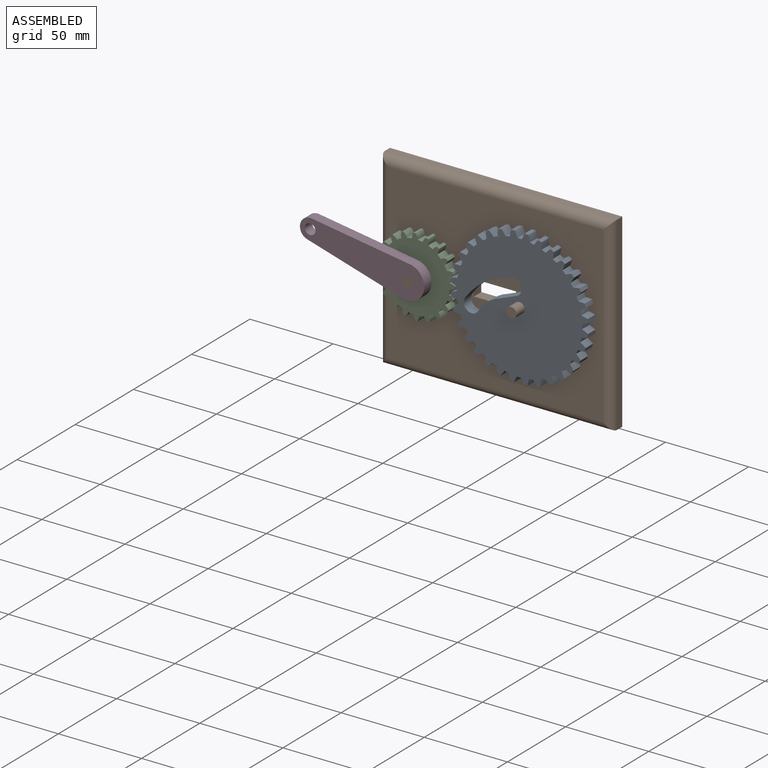
[diagram: assembled view]
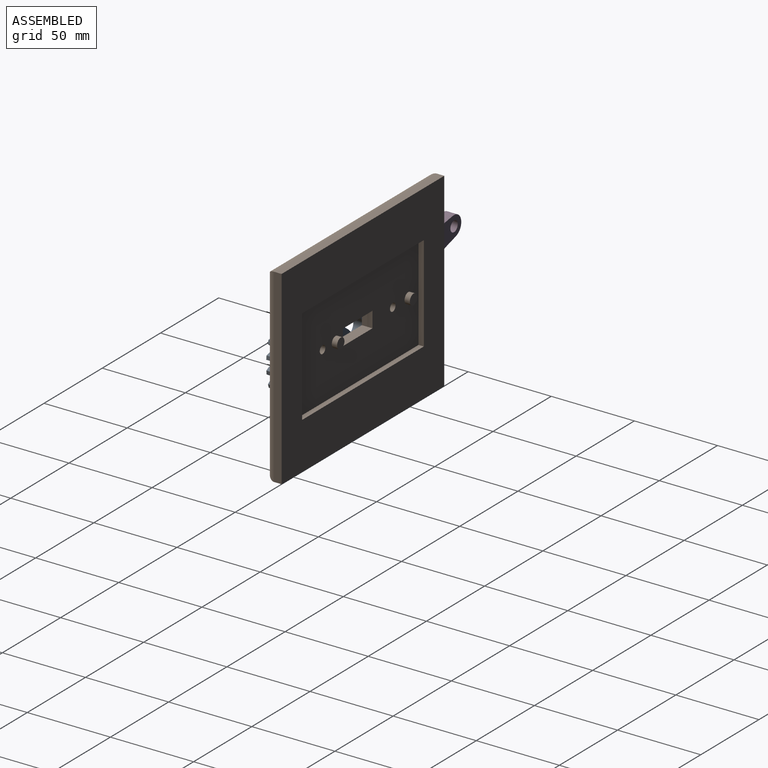
[diagram: assembled view, second angle]
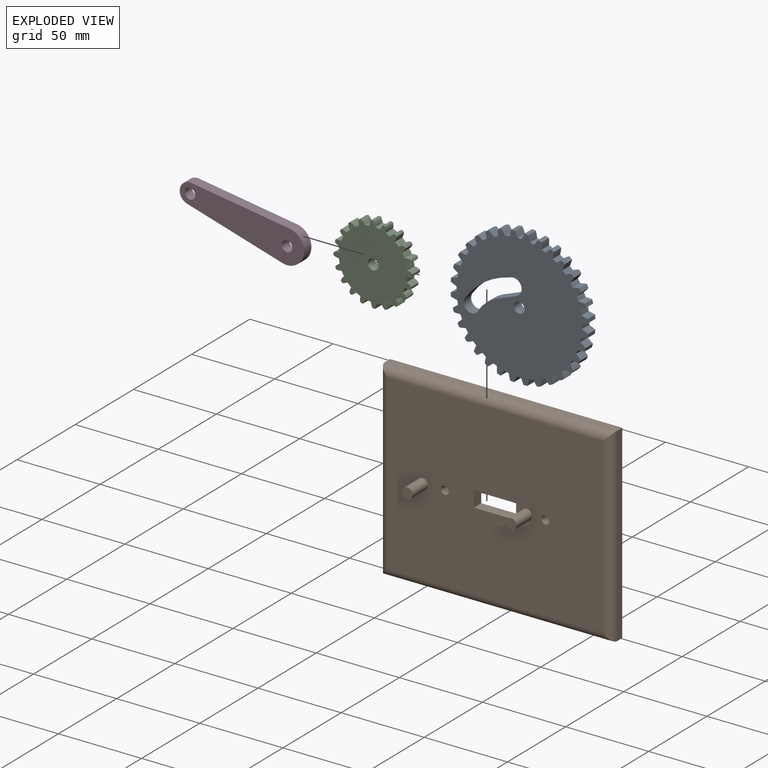
[diagram: exploded view]
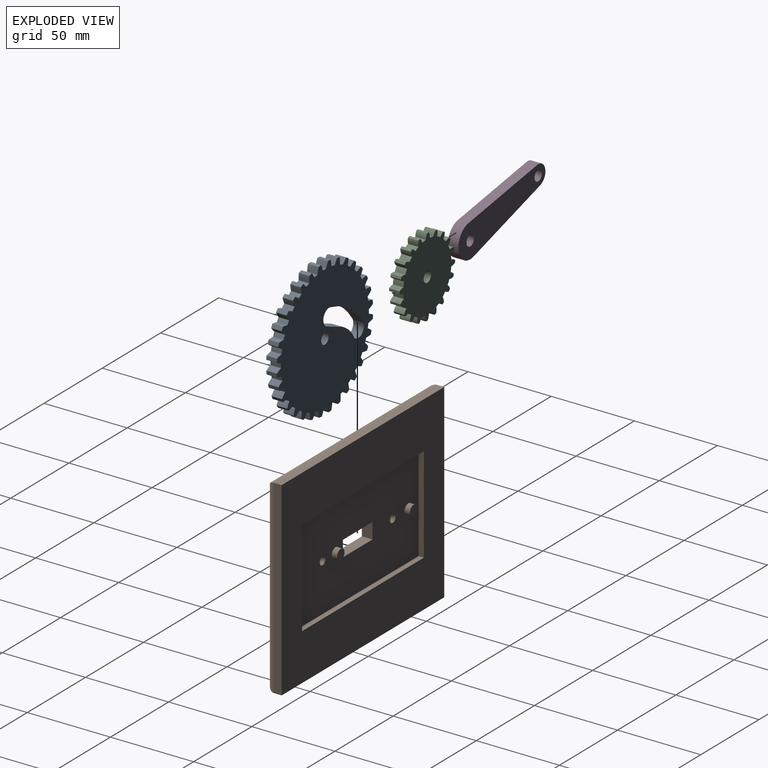
[diagram: exploded view, second angle]
ASSEMBLY  parts=4 mates=3
PART A: 200 faces, bbox 82.8x6.4x82.8 mm
  f0: plane 82.8x82.8mm, normal (0,-1,0), area 4491.3mm2, adj f2,f3,f4,f5,f6,f7,f8,f9
  f1: plane 82.8x82.8mm, normal (0,1,0), area 4491.3mm2, adj f2,f3,f4,f5,f6,f7,f8,f9
  f2: cylinder r=37.72mm len=6.35mm, axis (0,1,0), area 16.6mm2, adj f0,f1,f124,f129
  f3: cylinder r=37.72mm len=6.35mm, axis (0,1,0), area 16.6mm2, adj f0,f1,f128,f134
  f4: cylinder r=37.72mm len=6.35mm, axis (0,1,0), area 16.6mm2, adj f0,f1,f133,f139
  f5: cylinder r=37.72mm len=6.35mm, axis (0,1,0), area 16.6mm2, adj f0,f1,f138,f144
  f6: cylinder r=37.72mm len=6.35mm, axis (0,1,0), area 16.6mm2, adj f0,f1,f143,f149
  f7: cylinder r=37.72mm len=6.35mm, axis (0,1,0), area 16.6mm2, adj f0,f1,f148,f154
  f8: cylinder r=37.72mm len=6.35mm, axis (0,1,0), area 16.6mm2, adj f0,f1,f153,f159
  f9: cylinder r=37.72mm len=6.35mm, axis (0,1,0), area 16.6mm2, adj f0,f1,f158,f164
  f10: cylinder r=37.72mm len=6.35mm, axis (0,1,0), area 16.6mm2, adj f0,f1,f163,f169
  f11: cylinder r=37.72mm len=6.35mm, axis (0,1,0), area 16.6mm2, adj f0,f1,f168,f174
  f12: cylinder r=37.72mm len=6.35mm, axis (0,1,0), area 16.6mm2, adj f0,f1,f173,f179
  f13: cylinder r=37.72mm len=6.35mm, axis (0,1,0), area 16.6mm2, adj f0,f1,f178,f184
  f14: cylinder r=37.72mm len=6.35mm, axis (0,1,0), area 16.6mm2, adj f0,f1,f183,f189
  f15: cylinder r=37.72mm len=6.35mm, axis (0,1,0), area 16.6mm2, adj f0,f1,f188,f192
  f16: cylinder r=37.72mm len=6.35mm, axis (0,1,0), area 16.6mm2, adj f0,f1,f44,f193
  f17: cylinder r=37.72mm len=6.35mm, axis (0,1,0), area 16.6mm2, adj f0,f1,f43,f49
  f18: cylinder r=37.72mm len=6.35mm, axis (0,1,0), area 16.6mm2, adj f0,f1,f48,f54
  f19: cylinder r=37.72mm len=6.35mm, axis (0,1,0), area 16.6mm2, adj f0,f1,f53,f59
  f20: cylinder r=37.72mm len=6.35mm, axis (0,1,0), area 16.6mm2, adj f0,f1,f58,f64
  f21: cylinder r=37.72mm len=6.35mm, axis (0,1,0), area 16.6mm2, adj f0,f1,f63,f69
  f22: cylinder r=37.72mm len=6.35mm, axis (0,1,0), area 16.6mm2, adj f0,f1,f68,f74
  f23: cylinder r=37.72mm len=6.35mm, axis (0,1,0), area 16.6mm2, adj f0,f1,f73,f79
  f24: cylinder r=37.72mm len=6.35mm, axis (0,1,0), area 16.6mm2, adj f0,f1,f78,f84
  f25: cylinder r=37.72mm len=6.35mm, axis (0,1,0), area 16.6mm2, adj f0,f1,f83,f89
  f26: cylinder r=37.72mm len=6.35mm, axis (0,1,0), area 16.6mm2, adj f0,f1,f88,f94
  f27: cylinder r=37.72mm len=6.35mm, axis (0,1,0), area 16.6mm2, adj f0,f1,f93,f99
  f28: cylinder r=37.72mm len=6.35mm, axis (0,1,0), area 16.6mm2, adj f0,f1,f98,f104
  f29: cylinder r=37.72mm len=6.35mm, axis (0,1,0), area 16.6mm2, adj f0,f1,f103,f109
  f30: cylinder r=37.72mm len=6.35mm, axis (0,1,0), area 16.6mm2, adj f0,f1,f108,f114
  f31: cylinder r=37.72mm len=6.35mm, axis (0,1,0), area 16.6mm2, adj f0,f1,f113,f119
  f32: cylinder r=37.72mm len=6.35mm, axis (0,1,0), area 16.6mm2, adj f0,f1,f35,f118
  f33: plane 6.35x2.23mm, normal (-0.03,0,1), area 14.2mm2, adj f0,f1,f34,f39
  f34: cylinder r=17.84mm len=6.35mm, axis (0,1,0), area 11.4mm2, adj f0,f1,f33,f35
  f35: cylinder r=36.23mm len=6.35mm, axis (0,1,0), area 13.7mm2, adj f0,f1,f32,f34
  f36: cylinder r=37.72mm len=6.35mm, axis (0,1,0), area 16.6mm2, adj f0,f1,f37,f123
  f37: cylinder r=36.23mm len=6.35mm, axis (0,1,0), area 13.7mm2, adj f0,f1,f36,f39
  f38: cylinder r=3.17mm len=6.35mm, axis (0,1,0), area 126.7mm2, adj f0,f1
  f39: cylinder r=17.84mm len=6.35mm, axis (0,1,0), area 11.4mm2, adj f0,f1,f33,f37
  f40: cylinder r=17.84mm len=6.35mm, axis (0,1,0), area 11.4mm2, adj f0,f1,f41,f43
  f41: plane 6.35x2.23mm, normal (0.03,0,-1), area 14.2mm2, adj f0,f1,f40,f42
  f42: cylinder r=17.84mm len=6.35mm, axis (0,1,0), area 11.4mm2, adj f0,f1,f41,f44
  f43: cylinder r=36.23mm len=6.35mm, axis (0,1,0), area 13.7mm2, adj f0,f1,f17,f40
  f44: cylinder r=36.23mm len=6.35mm, axis (0,1,0), area 13.7mm2, adj f0,f1,f16,f42
  f45: cylinder r=17.84mm len=6.35mm, axis (0,1,0), area 11.4mm2, adj f0,f1,f46,f48
  f46: plane 6.35x2.21mm, normal (-0.16,0,-0.99), area 14.2mm2, adj f0,f1,f45,f47
  f47: cylinder r=17.84mm len=6.35mm, axis (0,1,0), area 11.4mm2, adj f0,f1,f46,f49
  f48: cylinder r=36.23mm len=6.35mm, axis (0,1,0), area 13.7mm2, adj f0,f1,f18,f45
  f49: cylinder r=36.23mm len=6.35mm, axis (0,1,0), area 13.7mm2, adj f0,f1,f17,f47
  f50: cylinder r=17.84mm len=6.35mm, axis (0,1,0), area 11.4mm2, adj f0,f1,f51,f53
  f51: plane 6.35x2.09mm, normal (-0.35,0,-0.94), area 14.2mm2, adj f0,f1,f50,f52
  f52: cylinder r=17.84mm len=6.35mm, axis (0,1,0), area 11.4mm2, adj f0,f1,f51,f54
  f53: cylinder r=36.23mm len=6.35mm, axis (0,1,0), area 13.7mm2, adj f0,f1,f19,f50
  f54: cylinder r=36.23mm len=6.35mm, axis (0,1,0), area 13.7mm2, adj f0,f1,f18,f52
  f55: cylinder r=17.84mm len=6.35mm, axis (0,1,0), area 11.4mm2, adj f0,f1,f56,f58
  f56: plane 6.35x1.9mm, normal (-0.53,0,-0.85), area 14.2mm2, adj f0,f1,f55,f57
  f57: cylinder r=17.84mm len=6.35mm, axis (0,1,0), area 11.4mm2, adj f0,f1,f56,f59
  f58: cylinder r=36.23mm len=6.35mm, axis (0,1,0), area 13.7mm2, adj f0,f1,f20,f55
  f59: cylinder r=36.23mm len=6.35mm, axis (0,1,0), area 13.7mm2, adj f0,f1,f19,f57
  f60: cylinder r=17.84mm len=6.35mm, axis (0,1,0), area 11.4mm2, adj f0,f1,f61,f63
  f61: plane 6.35x1.63mm, normal (-0.68,0,-0.73), area 14.2mm2, adj f0,f1,f60,f62
  f62: cylinder r=17.84mm len=6.35mm, axis (0,1,0), area 11.4mm2, adj f0,f1,f61,f64
  f63: cylinder r=36.23mm len=6.35mm, axis (0,1,0), area 13.7mm2, adj f0,f1,f21,f60
  f64: cylinder r=36.23mm len=6.35mm, axis (0,1,0), area 13.7mm2, adj f0,f1,f20,f62
  f65: cylinder r=17.84mm len=6.35mm, axis (0,1,0), area 11.4mm2, adj f0,f1,f66,f68
  f66: plane 6.35x1.81mm, normal (-0.81,0,-0.58), area 14.2mm2, adj f0,f1,f65,f67
  f67: cylinder r=17.84mm len=6.35mm, axis (0,1,0), area 11.4mm2, adj f0,f1,f66,f69
  f68: cylinder r=36.23mm len=6.35mm, axis (0,1,0), area 13.7mm2, adj f0,f1,f22,f65
  f69: cylinder r=36.23mm len=6.35mm, axis (0,1,0), area 13.7mm2, adj f0,f1,f21,f67
  f70: cylinder r=17.84mm len=6.35mm, axis (0,1,0), area 11.4mm2, adj f0,f1,f71,f73
  f71: plane 6.35x2.03mm, normal (-0.91,0,-0.41), area 14.2mm2, adj f0,f1,f70,f72
  f72: cylinder r=17.84mm len=6.35mm, axis (0,1,0), area 11.4mm2, adj f0,f1,f71,f74
  f73: cylinder r=36.23mm len=6.35mm, axis (0,1,0), area 13.7mm2, adj f0,f1,f23,f70
  f74: cylinder r=36.23mm len=6.35mm, axis (0,1,0), area 13.7mm2, adj f0,f1,f22,f72
  f75: cylinder r=17.84mm len=6.35mm, axis (0,1,0), area 11.4mm2, adj f0,f1,f76,f78
  f76: plane 6.35x2.18mm, normal (-0.97,0,-0.23), area 14.2mm2, adj f0,f1,f75,f77
  f77: cylinder r=17.84mm len=6.35mm, axis (0,1,0), area 11.4mm2, adj f0,f1,f76,f79
  f78: cylinder r=36.23mm len=6.35mm, axis (0,1,0), area 13.7mm2, adj f0,f1,f24,f75
  f79: cylinder r=36.23mm len=6.35mm, axis (0,1,0), area 13.7mm2, adj f0,f1,f23,f77
  f80: cylinder r=17.84mm len=6.35mm, axis (0,1,0), area 11.4mm2, adj f0,f1,f81,f83
  f81: plane 6.35x2.23mm, normal (-1,0,-0.03), area 14.2mm2, adj f0,f1,f80,f82
  f82: cylinder r=17.84mm len=6.35mm, axis (0,1,0), area 11.4mm2, adj f0,f1,f81,f84
  f83: cylinder r=36.23mm len=6.35mm, axis (0,1,0), area 13.7mm2, adj f0,f1,f25,f80
  f84: cylinder r=36.23mm len=6.35mm, axis (0,1,0), area 13.7mm2, adj f0,f1,f24,f82
  f85: cylinder r=17.84mm len=6.35mm, axis (0,1,0), area 11.4mm2, adj f0,f1,f86,f88
  f86: plane 6.35x2.21mm, normal (-0.99,0,0.16), area 14.2mm2, adj f0,f1,f85,f87
  f87: cylinder r=17.84mm len=6.35mm, axis (0,1,0), area 11.4mm2, adj f0,f1,f86,f89
  f88: cylinder r=36.23mm len=6.35mm, axis (0,1,0), area 13.7mm2, adj f0,f1,f26,f85
  f89: cylinder r=36.23mm len=6.35mm, axis (0,1,0), area 13.7mm2, adj f0,f1,f25,f87
  f90: cylinder r=17.84mm len=6.35mm, axis (0,1,0), area 11.4mm2, adj f0,f1,f91,f93
  f91: plane 6.35x2.09mm, normal (-0.94,0,0.35), area 14.2mm2, adj f0,f1,f90,f92
  f92: cylinder r=17.84mm len=6.35mm, axis (0,1,0), area 11.4mm2, adj f0,f1,f91,f94
  f93: cylinder r=36.23mm len=6.35mm, axis (0,1,0), area 13.7mm2, adj f0,f1,f27,f90
  f94: cylinder r=36.23mm len=6.35mm, axis (0,1,0), area 13.7mm2, adj f0,f1,f26,f92
  f95: cylinder r=17.84mm len=6.35mm, axis (0,1,0), area 11.4mm2, adj f0,f1,f96,f98
  f96: plane 6.35x1.9mm, normal (-0.85,0,0.53), area 14.2mm2, adj f0,f1,f95,f97
  f97: cylinder r=17.84mm len=6.35mm, axis (0,1,0), area 11.4mm2, adj f0,f1,f96,f99
  f98: cylinder r=36.23mm len=6.35mm, axis (0,1,0), area 13.7mm2, adj f0,f1,f28,f95
  f99: cylinder r=36.23mm len=6.35mm, axis (0,1,0), area 13.7mm2, adj f0,f1,f27,f97
  f100: cylinder r=17.84mm len=6.35mm, axis (0,1,0), area 11.4mm2, adj f0,f1,f101,f103
  f101: plane 6.35x1.63mm, normal (-0.73,0,0.68), area 14.2mm2, adj f0,f1,f100,f102
  f102: cylinder r=17.84mm len=6.35mm, axis (0,1,0), area 11.4mm2, adj f0,f1,f101,f104
  f103: cylinder r=36.23mm len=6.35mm, axis (0,1,0), area 13.7mm2, adj f0,f1,f29,f100
  f104: cylinder r=36.23mm len=6.35mm, axis (0,1,0), area 13.7mm2, adj f0,f1,f28,f102
  f105: cylinder r=17.84mm len=6.35mm, axis (0,1,0), area 11.4mm2, adj f0,f1,f106,f108
  f106: plane 6.35x1.81mm, normal (-0.58,0,0.81), area 14.2mm2, adj f0,f1,f105,f107
  f107: cylinder r=17.84mm len=6.35mm, axis (0,1,0), area 11.4mm2, adj f0,f1,f106,f109
  f108: cylinder r=36.23mm len=6.35mm, axis (0,1,0), area 13.7mm2, adj f0,f1,f30,f105
  f109: cylinder r=36.23mm len=6.35mm, axis (0,1,0), area 13.7mm2, adj f0,f1,f29,f107
  f110: cylinder r=17.84mm len=6.35mm, axis (0,1,0), area 11.4mm2, adj f0,f1,f111,f113
  f111: plane 6.35x2.03mm, normal (-0.41,0,0.91), area 14.2mm2, adj f0,f1,f110,f112
  f112: cylinder r=17.84mm len=6.35mm, axis (0,1,0), area 11.4mm2, adj f0,f1,f111,f114
  f113: cylinder r=36.23mm len=6.35mm, axis (0,1,0), area 13.7mm2, adj f0,f1,f31,f110
  f114: cylinder r=36.23mm len=6.35mm, axis (0,1,0), area 13.7mm2, adj f0,f1,f30,f112
  f115: cylinder r=17.84mm len=6.35mm, axis (0,1,0), area 11.4mm2, adj f0,f1,f116,f118
  f116: plane 6.35x2.18mm, normal (-0.23,0,0.97), area 14.2mm2, adj f0,f1,f115,f117
  f117: cylinder r=17.84mm len=6.35mm, axis (0,1,0), area 11.4mm2, adj f0,f1,f116,f119
  f118: cylinder r=36.23mm len=6.35mm, axis (0,1,0), area 13.7mm2, adj f0,f1,f32,f115
  f119: cylinder r=36.23mm len=6.35mm, axis (0,1,0), area 13.7mm2, adj f0,f1,f31,f117
  f120: cylinder r=17.84mm len=6.35mm, axis (0,1,0), area 11.4mm2, adj f0,f1,f121,f124
  f121: plane 6.35x2.21mm, normal (0.16,0,0.99), area 14.2mm2, adj f0,f1,f120,f122
  f122: cylinder r=17.84mm len=6.35mm, axis (0,1,0), area 11.4mm2, adj f0,f1,f121,f123
  f123: cylinder r=36.23mm len=6.35mm, axis (0,1,0), area 13.7mm2, adj f0,f1,f36,f122
  f124: cylinder r=36.23mm len=6.35mm, axis (0,1,0), area 13.7mm2, adj f0,f1,f2,f120
  f125: cylinder r=17.84mm len=6.35mm, axis (0,1,0), area 11.4mm2, adj f0,f1,f126,f128
  f126: plane 6.35x2.09mm, normal (0.35,0,0.94), area 14.2mm2, adj f0,f1,f125,f127
  f127: cylinder r=17.84mm len=6.35mm, axis (0,1,0), area 11.4mm2, adj f0,f1,f126,f129
  f128: cylinder r=36.23mm len=6.35mm, axis (0,1,0), area 13.7mm2, adj f0,f1,f3,f125
  f129: cylinder r=36.23mm len=6.35mm, axis (0,1,0), area 13.7mm2, adj f0,f1,f2,f127
  f130: cylinder r=17.84mm len=6.35mm, axis (0,1,0), area 11.4mm2, adj f0,f1,f131,f133
  f131: plane 6.35x1.9mm, normal (0.53,0,0.85), area 14.2mm2, adj f0,f1,f130,f132
  f132: cylinder r=17.84mm len=6.35mm, axis (0,1,0), area 11.4mm2, adj f0,f1,f131,f134
  f133: cylinder r=36.23mm len=6.35mm, axis (0,1,0), area 13.7mm2, adj f0,f1,f4,f130
  f134: cylinder r=36.23mm len=6.35mm, axis (0,1,0), area 13.7mm2, adj f0,f1,f3,f132
  f135: cylinder r=17.84mm len=6.35mm, axis (0,1,0), area 11.4mm2, adj f0,f1,f136,f138
  f136: plane 6.35x1.63mm, normal (0.68,0,0.73), area 14.2mm2, adj f0,f1,f135,f137
  f137: cylinder r=17.84mm len=6.35mm, axis (0,1,0), area 11.4mm2, adj f0,f1,f136,f139
  f138: cylinder r=36.23mm len=6.35mm, axis (0,1,0), area 13.7mm2, adj f0,f1,f5,f135
  f139: cylinder r=36.23mm len=6.35mm, axis (0,1,0), area 13.7mm2, adj f0,f1,f4,f137
  f140: cylinder r=17.84mm len=6.35mm, axis (0,1,0), area 11.4mm2, adj f0,f1,f141,f143
  f141: plane 6.35x1.81mm, normal (0.81,0,0.58), area 14.2mm2, adj f0,f1,f140,f142
  f142: cylinder r=17.84mm len=6.35mm, axis (0,1,0), area 11.4mm2, adj f0,f1,f141,f144
  f143: cylinder r=36.23mm len=6.35mm, axis (0,1,0), area 13.7mm2, adj f0,f1,f6,f140
  f144: cylinder r=36.23mm len=6.35mm, axis (0,1,0), area 13.7mm2, adj f0,f1,f5,f142
  f145: cylinder r=17.84mm len=6.35mm, axis (0,1,0), area 11.4mm2, adj f0,f1,f146,f148
  f146: plane 6.35x2.03mm, normal (0.91,0,0.41), area 14.2mm2, adj f0,f1,f145,f147
  f147: cylinder r=17.84mm len=6.35mm, axis (0,1,0), area 11.4mm2, adj f0,f1,f146,f149
  f148: cylinder r=36.23mm len=6.35mm, axis (0,1,0), area 13.7mm2, adj f0,f1,f7,f145
  f149: cylinder r=36.23mm len=6.35mm, axis (0,1,0), area 13.7mm2, adj f0,f1,f6,f147
  f150: cylinder r=17.84mm len=6.35mm, axis (0,1,0), area 11.4mm2, adj f0,f1,f151,f153
  f151: plane 6.35x2.18mm, normal (0.97,0,0.23), area 14.2mm2, adj f0,f1,f150,f152
  f152: cylinder r=17.84mm len=6.35mm, axis (0,1,0), area 11.4mm2, adj f0,f1,f151,f154
  f153: cylinder r=36.23mm len=6.35mm, axis (0,1,0), area 13.7mm2, adj f0,f1,f8,f150
  f154: cylinder r=36.23mm len=6.35mm, axis (0,1,0), area 13.7mm2, adj f0,f1,f7,f152
  f155: cylinder r=17.84mm len=6.35mm, axis (0,1,0), area 11.4mm2, adj f0,f1,f156,f158
  f156: plane 6.35x2.23mm, normal (1,0,0.03), area 14.2mm2, adj f0,f1,f155,f157
  f157: cylinder r=17.84mm len=6.35mm, axis (0,1,0), area 11.4mm2, adj f0,f1,f156,f159
  f158: cylinder r=36.23mm len=6.35mm, axis (0,1,0), area 13.7mm2, adj f0,f1,f9,f155
  f159: cylinder r=36.23mm len=6.35mm, axis (0,1,0), area 13.7mm2, adj f0,f1,f8,f157
  f160: cylinder r=17.84mm len=6.35mm, axis (0,1,0), area 11.4mm2, adj f0,f1,f161,f163
  f161: plane 6.35x2.21mm, normal (0.99,0,-0.16), area 14.2mm2, adj f0,f1,f160,f162
  f162: cylinder r=17.84mm len=6.35mm, axis (0,1,0), area 11.4mm2, adj f0,f1,f161,f164
  f163: cylinder r=36.23mm len=6.35mm, axis (0,1,0), area 13.7mm2, adj f0,f1,f10,f160
  f164: cylinder r=36.23mm len=6.35mm, axis (0,1,0), area 13.7mm2, adj f0,f1,f9,f162
  f165: cylinder r=17.84mm len=6.35mm, axis (0,1,0), area 11.4mm2, adj f0,f1,f166,f168
  f166: plane 6.35x2.09mm, normal (0.94,0,-0.35), area 14.2mm2, adj f0,f1,f165,f167
  f167: cylinder r=17.84mm len=6.35mm, axis (0,1,0), area 11.4mm2, adj f0,f1,f166,f169
  f168: cylinder r=36.23mm len=6.35mm, axis (0,1,0), area 13.7mm2, adj f0,f1,f11,f165
  f169: cylinder r=36.23mm len=6.35mm, axis (0,1,0), area 13.7mm2, adj f0,f1,f10,f167
  f170: cylinder r=17.84mm len=6.35mm, axis (0,1,0), area 11.4mm2, adj f0,f1,f171,f173
  f171: plane 6.35x1.9mm, normal (0.85,0,-0.53), area 14.2mm2, adj f0,f1,f170,f172
  f172: cylinder r=17.84mm len=6.35mm, axis (0,1,0), area 11.4mm2, adj f0,f1,f171,f174
  f173: cylinder r=36.23mm len=6.35mm, axis (0,1,0), area 13.7mm2, adj f0,f1,f12,f170
  f174: cylinder r=36.23mm len=6.35mm, axis (0,1,0), area 13.7mm2, adj f0,f1,f11,f172
  f175: cylinder r=17.84mm len=6.35mm, axis (0,1,0), area 11.4mm2, adj f0,f1,f176,f178
  f176: plane 6.35x1.63mm, normal (0.73,0,-0.68), area 14.2mm2, adj f0,f1,f175,f177
  f177: cylinder r=17.84mm len=6.35mm, axis (0,1,0), area 11.4mm2, adj f0,f1,f176,f179
  f178: cylinder r=36.23mm len=6.35mm, axis (0,1,0), area 13.7mm2, adj f0,f1,f13,f175
  f179: cylinder r=36.23mm len=6.35mm, axis (0,1,0), area 13.7mm2, adj f0,f1,f12,f177
  f180: cylinder r=17.84mm len=6.35mm, axis (0,1,0), area 11.4mm2, adj f0,f1,f181,f183
  f181: plane 6.35x1.81mm, normal (0.58,0,-0.81), area 14.2mm2, adj f0,f1,f180,f182
  f182: cylinder r=17.84mm len=6.35mm, axis (0,1,0), area 11.4mm2, adj f0,f1,f181,f184
  f183: cylinder r=36.23mm len=6.35mm, axis (0,1,0), area 13.7mm2, adj f0,f1,f14,f180
  f184: cylinder r=36.23mm len=6.35mm, axis (0,1,0), area 13.7mm2, adj f0,f1,f13,f182
  f185: cylinder r=17.84mm len=6.35mm, axis (0,1,0), area 11.4mm2, adj f0,f1,f186,f188
  f186: plane 6.35x2.03mm, normal (0.41,0,-0.91), area 14.2mm2, adj f0,f1,f185,f187
  f187: cylinder r=17.84mm len=6.35mm, axis (0,1,0), area 11.4mm2, adj f0,f1,f186,f189
  f188: cylinder r=36.23mm len=6.35mm, axis (0,1,0), area 13.7mm2, adj f0,f1,f15,f185
  f189: cylinder r=36.23mm len=6.35mm, axis (0,1,0), area 13.7mm2, adj f0,f1,f14,f187
  f190: plane 6.35x2.18mm, normal (0.23,0,-0.97), area 14.2mm2, adj f0,f1,f191,f194
  f191: cylinder r=17.84mm len=6.35mm, axis (0,1,0), area 11.4mm2, adj f0,f1,f190,f192
  f192: cylinder r=36.23mm len=6.35mm, axis (0,1,0), area 13.7mm2, adj f0,f1,f15,f191
  f193: cylinder r=36.23mm len=6.35mm, axis (0,1,0), area 13.7mm2, adj f0,f1,f16,f194
  f194: cylinder r=17.84mm len=6.35mm, axis (0,1,0), area 11.4mm2, adj f0,f1,f190,f193
  f195: cylinder r=23.94mm len=11.55mm, axis (0,1,0), area 104.3mm2, adj f0,f1,f196,f199
  f196: plane 8.24x6.35mm, normal (0.87,0,0.5), area 60.2mm2, adj f0,f1,f195,f197
  f197: cylinder r=4.94mm len=9.51mm, axis (0,1,0), area 104.9mm2, adj f0,f1,f196,f198
  f198: cylinder r=44.01mm len=23.86mm, axis (0,1,0), area 208.1mm2, adj f0,f1,f197,f199
  f199: cylinder r=4.74mm len=9.43mm, axis (0,1,0), area 106.5mm2, adj f0,f1,f195,f198
PART B: 29 faces, bbox 139.7x22.9x114.3 mm
  f0: plane 9.53x6.35mm, normal (-1,0,0), area 60.5mm2, adj f1,f5,f11,f20
  f1: plane 25.4x6.35mm, normal (0,0,1), area 161.3mm2, adj f0,f2,f11,f20
  f2: plane 9.53x6.35mm, normal (1,0,0), area 60.5mm2, adj f1,f5,f11,f20
  f3: cylinder r=2.37mm len=6.35mm, axis (0,1,0), area 94.8mm2, adj f11,f20
  f4: cylinder r=2.37mm len=6.35mm, axis (0,1,0), area 94.8mm2, adj f11,f20
  f5: plane 25.4x6.35mm, normal (0,0,-1), area 161.3mm2, adj f0,f2,f11,f20
  f6: plane 139.7x114.3mm, normal (0,1,0), area 9920.6mm2, adj f7,f8,f9,f10,f16,f17,f18,f19
  f7: plane 114.3x4.45mm, normal (1,0,0), area 508.1mm2, adj f6,f8,f10,f13
  f8: plane 139.7x4.45mm, normal (0,0,1), area 621mm2, adj f6,f7,f9,f12
  f9: plane 114.3x4.45mm, normal (-1,0,0), area 508.1mm2, adj f6,f8,f10,f14
  f10: plane 139.7x4.45mm, normal (0,0,-1), area 621mm2, adj f6,f7,f9,f15
  f11: plane 129.54x104.14mm, normal (0,-1,0), area 13149.6mm2, adj f0,f1,f2,f3,f4,f5,f12,f13
  f12: cylinder r=5.08mm len=139.7mm, axis (1,0,0), area 1085.3mm2, adj f8,f11,f13,f14
  f13: cylinder r=5.08mm len=114.3mm, axis (0,0,-1), area 882.6mm2, adj f7,f11,f12,f15
  f14: cylinder r=5.08mm len=114.3mm, axis (0,0,1), area 882.6mm2, adj f9,f11,f12,f15
  f15: cylinder r=5.08mm len=139.7mm, axis (-1,0,0), area 1085.3mm2, adj f10,f11,f13,f14
  f16: plane 104.58x3.18mm, normal (0,0,-1), area 332mm2, adj f6,f17,f19,f20
  f17: plane 57.82x3.18mm, normal (-1,0,0), area 183.6mm2, adj f6,f16,f18,f20
  f18: plane 104.58x3.18mm, normal (0,0,1), area 332mm2, adj f6,f17,f19,f20
  f19: plane 57.82x3.18mm, normal (1,0,0), area 183.6mm2, adj f6,f16,f18,f20
  f20: plane 104.58x57.82mm, normal (0,1,0), area 5706.4mm2, adj f0,f1,f2,f3,f4,f5,f16,f17
  f21: plane 6.35x6.35mm, normal (0,1,0), area 31.7mm2, adj f22
  f22: cylinder r=3.17mm len=6.35mm, axis (0,1,0), area 63.3mm2, adj f20,f21
  f23: cylinder r=3.17mm len=13.34mm, axis (0,1,0), area 266mm2, adj f11,f24
  f24: plane 6.35x6.35mm, normal (0,-1,0), area 31.7mm2, adj f23
  f25: plane 6.35x6.35mm, normal (0,1,0), area 31.7mm2, adj f26
  f26: cylinder r=3.17mm len=6.35mm, axis (0,1,0), area 63.3mm2, adj f20,f25
  f27: cylinder r=3.17mm len=13.34mm, axis (0,1,0), area 266mm2, adj f11,f28
  f28: plane 6.35x6.35mm, normal (0,-1,0), area 31.7mm2, adj f27
PART C: 123 faces, bbox 47.6x6.4x47.6 mm
  f0: cylinder r=20.64mm len=6.35mm, axis (0,1,0), area 19.4mm2, adj f26,f27,f82,f87
  f1: cylinder r=20.64mm len=6.35mm, axis (0,1,0), area 19.4mm2, adj f26,f27,f86,f92
  f2: cylinder r=20.64mm len=6.35mm, axis (0,1,0), area 19.4mm2, adj f26,f27,f91,f97
  f3: cylinder r=20.64mm len=6.35mm, axis (0,1,0), area 19.4mm2, adj f26,f27,f96,f102
  f4: cylinder r=20.64mm len=6.35mm, axis (0,1,0), area 19.4mm2, adj f26,f27,f101,f107
  f5: cylinder r=20.64mm len=6.35mm, axis (0,1,0), area 19.4mm2, adj f26,f27,f106,f112
  f6: cylinder r=20.64mm len=6.35mm, axis (0,1,0), area 19.4mm2, adj f26,f27,f111,f117
  f7: cylinder r=20.64mm len=6.35mm, axis (0,1,0), area 19.4mm2, adj f26,f27,f32,f37
  f8: cylinder r=20.64mm len=6.35mm, axis (0,1,0), area 19.4mm2, adj f26,f27,f36,f42
  f9: cylinder r=20.64mm len=6.35mm, axis (0,1,0), area 19.4mm2, adj f26,f27,f41,f47
  f10: cylinder r=20.64mm len=6.35mm, axis (0,1,0), area 19.4mm2, adj f26,f27,f46,f52
  f11: cylinder r=20.64mm len=6.35mm, axis (0,1,0), area 19.4mm2, adj f26,f27,f51,f57
  f12: cylinder r=20.64mm len=6.35mm, axis (0,1,0), area 19.4mm2, adj f26,f27,f56,f62
  f13: cylinder r=20.64mm len=6.35mm, axis (0,1,0), area 19.4mm2, adj f26,f27,f61,f67
  f14: cylinder r=20.64mm len=6.35mm, axis (0,1,0), area 19.4mm2, adj f26,f27,f66,f72
  f15: cylinder r=20.64mm len=6.35mm, axis (0,1,0), area 19.4mm2, adj f26,f27,f31,f122
  f16: cylinder r=20.64mm len=6.35mm, axis (0,1,0), area 19.4mm2, adj f26,f27,f116,f121
  f17: cylinder r=20.64mm len=6.35mm, axis (0,1,0), area 19.4mm2, adj f26,f27,f71,f77
  f18: cylinder r=20.64mm len=6.35mm, axis (0,1,0), area 19.4mm2, adj f22,f26,f27,f76
  f19: cylinder r=5.7mm len=6.35mm, axis (0,1,0), area 11.1mm2, adj f20,f24,f26,f27
  f20: plane 6.35x1.43mm, normal (-0.07,0,1), area 9.1mm2, adj f19,f21,f26,f27
  f21: cylinder r=5.7mm len=6.35mm, axis (0,1,0), area 11.1mm2, adj f20,f22,f26,f27
  f22: cylinder r=6.47mm len=6.35mm, axis (0,1,0), area 10.7mm2, adj f18,f21,f26,f27
  f23: cylinder r=20.64mm len=6.35mm, axis (0,1,0), area 19.4mm2, adj f24,f26,f27,f81
  f24: cylinder r=6.47mm len=6.35mm, axis (0,1,0), area 10.7mm2, adj f19,f23,f26,f27
  f25: cylinder r=3.17mm len=6.35mm, axis (0,1,0), area 126.7mm2, adj f26,f27
  f26: plane 47.6x47.6mm, normal (0,-1,0), area 1482.4mm2, adj f0,f1,f2,f3,f4,f5,f6,f7
  f27: plane 47.6x47.6mm, normal (0,1,0), area 1482.4mm2, adj f0,f1,f2,f3,f4,f5,f6,f7
  f28: cylinder r=5.7mm len=6.35mm, axis (0,1,0), area 11.1mm2, adj f26,f27,f29,f32
  f29: plane 6.35x1.43mm, normal (0.07,0,-1), area 9.1mm2, adj f26,f27,f28,f30
  f30: cylinder r=5.7mm len=6.35mm, axis (0,1,0), area 11.1mm2, adj f26,f27,f29,f31
  f31: cylinder r=6.47mm len=6.35mm, axis (0,1,0), area 10.7mm2, adj f15,f26,f27,f30
  f32: cylinder r=6.47mm len=6.35mm, axis (0,1,0), area 10.7mm2, adj f7,f26,f27,f28
  f33: cylinder r=5.7mm len=6.35mm, axis (0,1,0), area 11.1mm2, adj f26,f27,f34,f36
  f34: plane 6.35x1.39mm, normal (-0.25,0,-0.97), area 9.1mm2, adj f26,f27,f33,f35
  f35: cylinder r=5.7mm len=6.35mm, axis (0,1,0), area 11.1mm2, adj f26,f27,f34,f37
  f36: cylinder r=6.47mm len=6.35mm, axis (0,1,0), area 10.7mm2, adj f8,f26,f27,f33
  f37: cylinder r=6.47mm len=6.35mm, axis (0,1,0), area 10.7mm2, adj f7,f26,f27,f35
  f38: cylinder r=5.7mm len=6.35mm, axis (0,1,0), area 11.1mm2, adj f26,f27,f39,f41
  f39: plane 6.35x1.21mm, normal (-0.53,0,-0.85), area 9.1mm2, adj f26,f27,f38,f40
  f40: cylinder r=5.7mm len=6.35mm, axis (0,1,0), area 11.1mm2, adj f26,f27,f39,f42
  f41: cylinder r=6.47mm len=6.35mm, axis (0,1,0), area 10.7mm2, adj f9,f26,f27,f38
  f42: cylinder r=6.47mm len=6.35mm, axis (0,1,0), area 10.7mm2, adj f8,f26,f27,f40
  f43: cylinder r=5.7mm len=6.35mm, axis (0,1,0), area 11.1mm2, adj f26,f27,f44,f46
  f44: plane 6.35x1.1mm, normal (-0.77,0,-0.64), area 9.1mm2, adj f26,f27,f43,f45
  f45: cylinder r=5.7mm len=6.35mm, axis (0,1,0), area 11.1mm2, adj f26,f27,f44,f47
  f46: cylinder r=6.47mm len=6.35mm, axis (0,1,0), area 10.7mm2, adj f10,f26,f27,f43
  f47: cylinder r=6.47mm len=6.35mm, axis (0,1,0), area 10.7mm2, adj f9,f26,f27,f45
  f48: cylinder r=5.7mm len=6.35mm, axis (0,1,0), area 11.1mm2, adj f26,f27,f49,f51
  f49: plane 6.35x1.33mm, normal (-0.93,0,-0.37), area 9.1mm2, adj f26,f27,f48,f50
  f50: cylinder r=5.7mm len=6.35mm, axis (0,1,0), area 11.1mm2, adj f26,f27,f49,f52
  f51: cylinder r=6.47mm len=6.35mm, axis (0,1,0), area 10.7mm2, adj f11,f26,f27,f48
  f52: cylinder r=6.47mm len=6.35mm, axis (0,1,0), area 10.7mm2, adj f10,f26,f27,f50
  f53: cylinder r=5.7mm len=6.35mm, axis (0,1,0), area 11.1mm2, adj f26,f27,f54,f56
  f54: plane 6.35x1.43mm, normal (-1,0,-0.07), area 9.1mm2, adj f26,f27,f53,f55
  f55: cylinder r=5.7mm len=6.35mm, axis (0,1,0), area 11.1mm2, adj f26,f27,f54,f57
  f56: cylinder r=6.47mm len=6.35mm, axis (0,1,0), area 10.7mm2, adj f12,f26,f27,f53
  f57: cylinder r=6.47mm len=6.35mm, axis (0,1,0), area 10.7mm2, adj f11,f26,f27,f55
  f58: cylinder r=5.7mm len=6.35mm, axis (0,1,0), area 11.1mm2, adj f26,f27,f59,f61
  f59: plane 6.35x1.39mm, normal (-0.97,0,0.25), area 9.1mm2, adj f26,f27,f58,f60
  f60: cylinder r=5.7mm len=6.35mm, axis (0,1,0), area 11.1mm2, adj f26,f27,f59,f62
  f61: cylinder r=6.47mm len=6.35mm, axis (0,1,0), area 10.7mm2, adj f13,f26,f27,f58
  f62: cylinder r=6.47mm len=6.35mm, axis (0,1,0), area 10.7mm2, adj f12,f26,f27,f60
  f63: cylinder r=5.7mm len=6.35mm, axis (0,1,0), area 11.1mm2, adj f26,f27,f64,f66
  f64: plane 6.35x1.21mm, normal (-0.85,0,0.53), area 9.1mm2, adj f26,f27,f63,f65
  f65: cylinder r=5.7mm len=6.35mm, axis (0,1,0), area 11.1mm2, adj f26,f27,f64,f67
  f66: cylinder r=6.47mm len=6.35mm, axis (0,1,0), area 10.7mm2, adj f14,f26,f27,f63
  f67: cylinder r=6.47mm len=6.35mm, axis (0,1,0), area 10.7mm2, adj f13,f26,f27,f65
  f68: cylinder r=5.7mm len=6.35mm, axis (0,1,0), area 11.1mm2, adj f26,f27,f69,f71
  f69: plane 6.35x1.1mm, normal (-0.64,0,0.77), area 9.1mm2, adj f26,f27,f68,f70
  f70: cylinder r=5.7mm len=6.35mm, axis (0,1,0), area 11.1mm2, adj f26,f27,f69,f72
  f71: cylinder r=6.47mm len=6.35mm, axis (0,1,0), area 10.7mm2, adj f17,f26,f27,f68
  f72: cylinder r=6.47mm len=6.35mm, axis (0,1,0), area 10.7mm2, adj f14,f26,f27,f70
  f73: cylinder r=5.7mm len=6.35mm, axis (0,1,0), area 11.1mm2, adj f26,f27,f74,f76
  f74: plane 6.35x1.33mm, normal (-0.37,0,0.93), area 9.1mm2, adj f26,f27,f73,f75
  f75: cylinder r=5.7mm len=6.35mm, axis (0,1,0), area 11.1mm2, adj f26,f27,f74,f77
  f76: cylinder r=6.47mm len=6.35mm, axis (0,1,0), area 10.7mm2, adj f18,f26,f27,f73
  f77: cylinder r=6.47mm len=6.35mm, axis (0,1,0), area 10.7mm2, adj f17,f26,f27,f75
  f78: cylinder r=5.7mm len=6.35mm, axis (0,1,0), area 11.1mm2, adj f26,f27,f79,f82
  f79: plane 6.35x1.39mm, normal (0.25,0,0.97), area 9.1mm2, adj f26,f27,f78,f80
  f80: cylinder r=5.7mm len=6.35mm, axis (0,1,0), area 11.1mm2, adj f26,f27,f79,f81
  f81: cylinder r=6.47mm len=6.35mm, axis (0,1,0), area 10.7mm2, adj f23,f26,f27,f80
  f82: cylinder r=6.47mm len=6.35mm, axis (0,1,0), area 10.7mm2, adj f0,f26,f27,f78
  f83: cylinder r=5.7mm len=6.35mm, axis (0,1,0), area 11.1mm2, adj f26,f27,f84,f86
  f84: plane 6.35x1.21mm, normal (0.53,0,0.85), area 9.1mm2, adj f26,f27,f83,f85
  f85: cylinder r=5.7mm len=6.35mm, axis (0,1,0), area 11.1mm2, adj f26,f27,f84,f87
  f86: cylinder r=6.47mm len=6.35mm, axis (0,1,0), area 10.7mm2, adj f1,f26,f27,f83
  f87: cylinder r=6.47mm len=6.35mm, axis (0,1,0), area 10.7mm2, adj f0,f26,f27,f85
  f88: cylinder r=5.7mm len=6.35mm, axis (0,1,0), area 11.1mm2, adj f26,f27,f89,f91
  f89: plane 6.35x1.1mm, normal (0.77,0,0.64), area 9.1mm2, adj f26,f27,f88,f90
  f90: cylinder r=5.7mm len=6.35mm, axis (0,1,0), area 11.1mm2, adj f26,f27,f89,f92
  f91: cylinder r=6.47mm len=6.35mm, axis (0,1,0), area 10.7mm2, adj f2,f26,f27,f88
  f92: cylinder r=6.47mm len=6.35mm, axis (0,1,0), area 10.7mm2, adj f1,f26,f27,f90
  f93: cylinder r=5.7mm len=6.35mm, axis (0,1,0), area 11.1mm2, adj f26,f27,f94,f96
  f94: plane 6.35x1.33mm, normal (0.93,0,0.37), area 9.1mm2, adj f26,f27,f93,f95
  f95: cylinder r=5.7mm len=6.35mm, axis (0,1,0), area 11.1mm2, adj f26,f27,f94,f97
  f96: cylinder r=6.47mm len=6.35mm, axis (0,1,0), area 10.7mm2, adj f3,f26,f27,f93
  f97: cylinder r=6.47mm len=6.35mm, axis (0,1,0), area 10.7mm2, adj f2,f26,f27,f95
  f98: cylinder r=5.7mm len=6.35mm, axis (0,1,0), area 11.1mm2, adj f26,f27,f99,f101
  f99: plane 6.35x1.43mm, normal (1,0,0.07), area 9.1mm2, adj f26,f27,f98,f100
  f100: cylinder r=5.7mm len=6.35mm, axis (0,1,0), area 11.1mm2, adj f26,f27,f99,f102
  f101: cylinder r=6.47mm len=6.35mm, axis (0,1,0), area 10.7mm2, adj f4,f26,f27,f98
  f102: cylinder r=6.47mm len=6.35mm, axis (0,1,0), area 10.7mm2, adj f3,f26,f27,f100
  f103: cylinder r=5.7mm len=6.35mm, axis (0,1,0), area 11.1mm2, adj f26,f27,f104,f106
  f104: plane 6.35x1.39mm, normal (0.97,0,-0.25), area 9.1mm2, adj f26,f27,f103,f105
  f105: cylinder r=5.7mm len=6.35mm, axis (0,1,0), area 11.1mm2, adj f26,f27,f104,f107
  f106: cylinder r=6.47mm len=6.35mm, axis (0,1,0), area 10.7mm2, adj f5,f26,f27,f103
  f107: cylinder r=6.47mm len=6.35mm, axis (0,1,0), area 10.7mm2, adj f4,f26,f27,f105
  f108: cylinder r=5.7mm len=6.35mm, axis (0,1,0), area 11.1mm2, adj f26,f27,f109,f111
  f109: plane 6.35x1.21mm, normal (0.85,0,-0.53), area 9.1mm2, adj f26,f27,f108,f110
  f110: cylinder r=5.7mm len=6.35mm, axis (0,1,0), area 11.1mm2, adj f26,f27,f109,f112
  f111: cylinder r=6.47mm len=6.35mm, axis (0,1,0), area 10.7mm2, adj f6,f26,f27,f108
  f112: cylinder r=6.47mm len=6.35mm, axis (0,1,0), area 10.7mm2, adj f5,f26,f27,f110
  f113: cylinder r=5.7mm len=6.35mm, axis (0,1,0), area 11.1mm2, adj f26,f27,f114,f116
  f114: plane 6.35x1.1mm, normal (0.64,0,-0.77), area 9.1mm2, adj f26,f27,f113,f115
  f115: cylinder r=5.7mm len=6.35mm, axis (0,1,0), area 11.1mm2, adj f26,f27,f114,f117
  f116: cylinder r=6.47mm len=6.35mm, axis (0,1,0), area 10.7mm2, adj f16,f26,f27,f113
  f117: cylinder r=6.47mm len=6.35mm, axis (0,1,0), area 10.7mm2, adj f6,f26,f27,f115
  f118: cylinder r=5.7mm len=6.35mm, axis (0,1,0), area 11.1mm2, adj f26,f27,f119,f122
  f119: plane 6.35x1.33mm, normal (0.37,0,-0.93), area 9.1mm2, adj f26,f27,f118,f120
  f120: cylinder r=5.7mm len=6.35mm, axis (0,1,0), area 11.1mm2, adj f26,f27,f119,f121
  f121: cylinder r=6.47mm len=6.35mm, axis (0,1,0), area 10.7mm2, adj f16,f26,f27,f120
  f122: cylinder r=6.47mm len=6.35mm, axis (0,1,0), area 10.7mm2, adj f15,f26,f27,f118
PART D: 8 faces, bbox 76.2x6.4x20.4 mm
  f0: cylinder r=10.19mm len=20.37mm, axis (0,1,0), area 217.5mm2, adj f1,f4,f6,f7
  f1: plane 59.07x6.35mm, normal (-0.03,0,1), area 375.3mm2, adj f0,f2,f6,f7
  f2: cylinder r=6.17mm len=12.31mm, axis (0,1,0), area 117.9mm2, adj f1,f4,f6,f7
  f3: cylinder r=3.17mm len=6.35mm, axis (0,1,0), area 126.7mm2, adj f6,f7
  f4: plane 59.12x6.35mm, normal (-0.1,0,-0.99), area 377.3mm2, adj f0,f2,f6,f7
  f5: cylinder r=3.17mm len=6.35mm, axis (0,1,0), area 126.7mm2, adj f6,f7
  f6: plane 76.17x20.37mm, normal (0,-1,0), area 1139.8mm2, adj f0,f1,f2,f3,f4,f5
  f7: plane 76.17x20.37mm, normal (0,1,0), area 1139.8mm2, adj f0,f1,f2,f3,f4,f5
PLACE A rot(axis=(0,-1,0),81.9deg) t=(-33.36,-14.35,17.56)mm
PLACE B t=(-52.41,-4.82,17.56)mm fixed
PLACE C rot(axis=(0,1,0),146.6deg) t=(-95.85,-14.35,17.56)mm
PLACE D rot(axis=(0,1,0),10.7deg) t=(-95.85,-21.33,17.56)mm
MATE revolute B.f26 <-> A.f38  axis (0,1,0) through (-33.36,-14.35,17.56)mm
MATE revolute B.f22 <-> D.f3  axis (0,-1,0) through (-95.85,-27.68,17.56)mm
MATE revolute B.f22 <-> C.f25  axis (0,-1,0) through (-95.85,-14.35,17.56)mm
